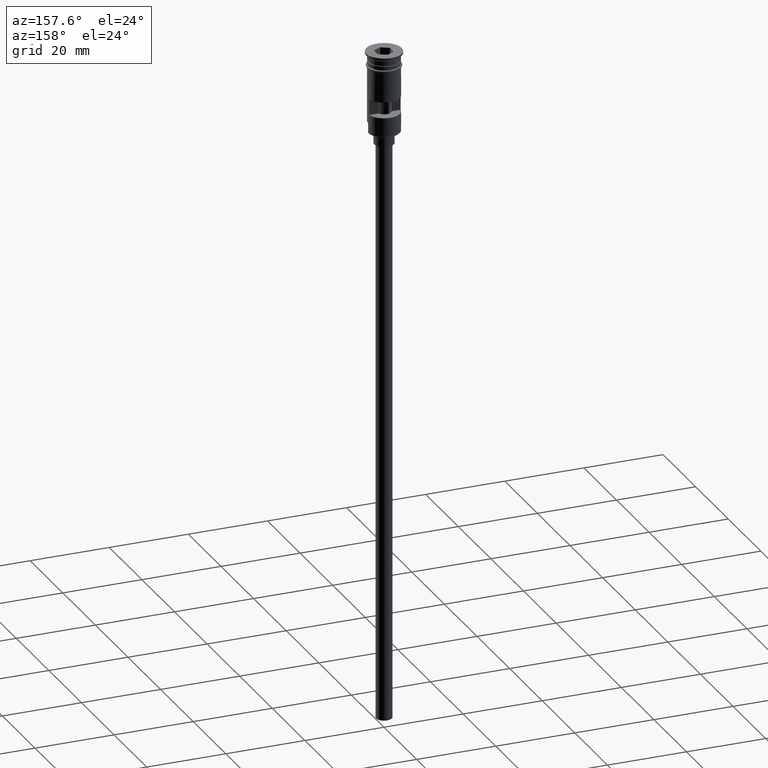
[diagram: clean part render]
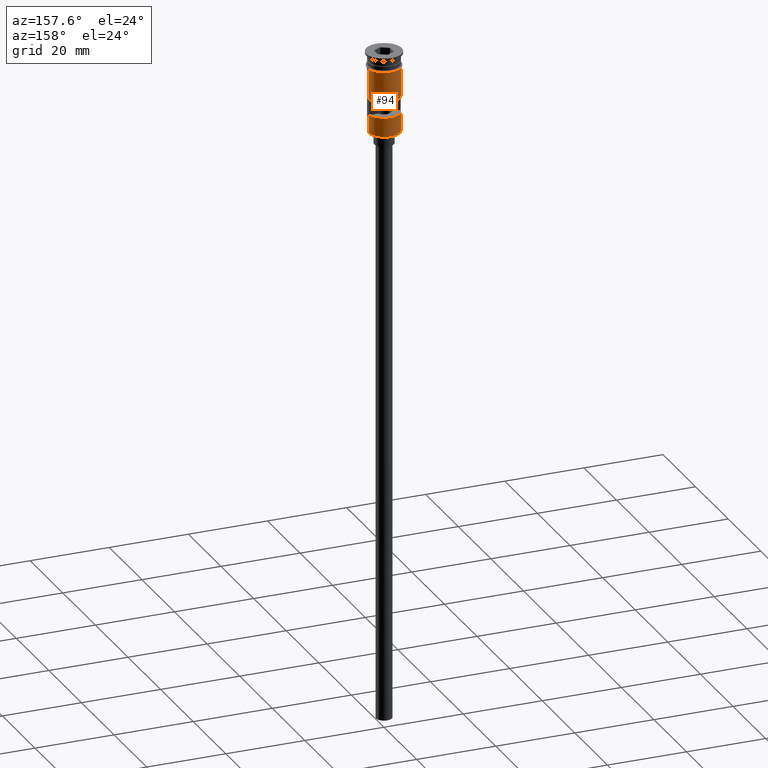
[diagram: same view with one face highlighted and labeled with its STEP entity id]
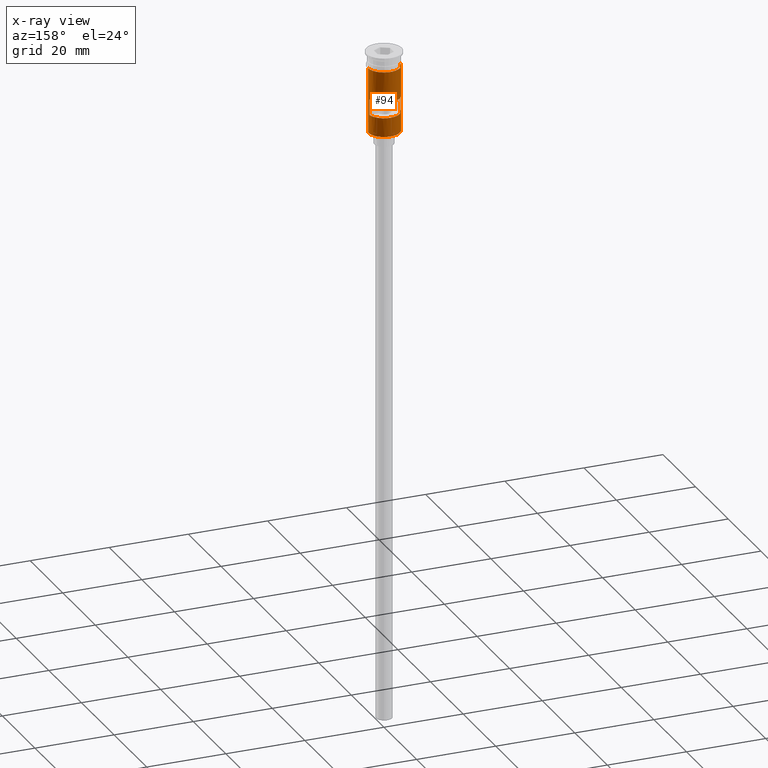
[diagram: x-ray of the same camera — body ghosted, the highlighted face saturated]
A machine part, auxiliary view. The second image highlights one B-rep face of the part: STEP entity #94.
The next image is the same camera in x-ray: the body ghosted, the highlighted face saturated — about 0% of this face is hidden behind the body in this view.
In plain terms, the highlighted cylindrical surface (edge-blend (fillet) strip) has radius 4 mm, axis along (-0, -0, 1).
Its self-contained STEP definition (entity closure, byte-faithful):
#8 = VECTOR ( 'NONE', #547, 1000.000000000000000 ) ;
#17 = CARTESIAN_POINT ( 'NONE',  ( -3.999999999999997335, 0.000000000000000000, -20.49999999999999645 ) ) ;
#19 = DIRECTION ( 'NONE',  ( 0.000000000000000000, 0.000000000000000000, 1.000000000000000000 ) ) ;
#35 = AXIS2_PLACEMENT_3D ( 'NONE', #473, #1473, #1346 ) ;
#45 = EDGE_CURVE ( 'NONE', #760, #1393, #1230, .T. ) ;
#48 = EDGE_CURVE ( 'NONE', #917, #514, #294, .T. ) ;
#53 = CARTESIAN_POINT ( 'NONE',  ( 0.000000000000000000, 0.000000000000000000, 0.000000000000000000 ) ) ;
#62 = AXIS2_PLACEMENT_3D ( 'NONE', #1250, #245, #166 ) ;
#65 = CARTESIAN_POINT ( 'NONE',  ( 4.000000000000000000, 0.000000000000000000, 0.000000000000000000 ) ) ;
#94 = ADVANCED_FACE ( 'NONE', ( #1017, #1041 ), #657, .T. ) ;
#105 = VECTOR ( 'NONE', #1394, 1000.000000000000000 ) ;
#119 = CARTESIAN_POINT ( 'NONE',  ( -4.000000000000000000, 4.898587196589412829E-16, 0.000000000000000000 ) ) ;
#126 = CARTESIAN_POINT ( 'NONE',  ( 0.000000000000000000, 0.000000000000000000, -11.50000000000000000 ) ) ;
#166 = DIRECTION ( 'NONE',  ( -1.000000000000000000, 0.000000000000000000, 0.000000000000000000 ) ) ;
#168 = ORIENTED_EDGE ( 'NONE', *, *, #453, .F. ) ;
#187 = EDGE_CURVE ( 'NONE', #307, #916, #247, .T. ) ;
#211 = CARTESIAN_POINT ( 'NONE',  ( 3.999999999999997335, 4.898587196589409870E-16, -20.29999999999997584 ) ) ;
#227 = AXIS2_PLACEMENT_3D ( 'NONE', #53, #1548, #427 ) ;
#245 = DIRECTION ( 'NONE',  ( 0.000000000000000000, 0.000000000000000000, 1.000000000000000000 ) ) ;
#247 = LINE ( 'NONE', #1492, #1139 ) ;
#265 = DIRECTION ( 'NONE',  ( -0.000000000000000000, -0.000000000000000000, 1.000000000000000000 ) ) ;
#269 = ORIENTED_EDGE ( 'NONE', *, *, #45, .T. ) ;
#294 = LINE ( 'NONE', #1402, #105 ) ;
#307 = VERTEX_POINT ( 'NONE', #211 ) ;
#348 = ORIENTED_EDGE ( 'NONE', *, *, #972, .F. ) ;
#357 = CIRCLE ( 'NONE', #62, 4.000000000000000000 ) ;
#372 = DIRECTION ( 'NONE',  ( -0.000000000000000000, -0.000000000000000000, 1.000000000000000000 ) ) ;
#386 = AXIS2_PLACEMENT_3D ( 'NONE', #126, #1388, #982 ) ;
#403 = ORIENTED_EDGE ( 'NONE', *, *, #187, .F. ) ;
#407 = CARTESIAN_POINT ( 'NONE',  ( 4.000000000000000000, 0.000000000000000000, -3.799999999999998490 ) ) ;
#419 = CIRCLE ( 'NONE', #1327, 4.000000000000000000 ) ;
#427 = DIRECTION ( 'NONE',  ( 1.000000000000000000, 0.000000000000000000, 0.000000000000000000 ) ) ;
#439 = DIRECTION ( 'NONE',  ( 0.000000000000000000, 0.000000000000000000, -1.000000000000000000 ) ) ;
#451 = ORIENTED_EDGE ( 'NONE', *, *, #1465, .F. ) ;
#453 = EDGE_CURVE ( 'NONE', #514, #902, #823, .T. ) ;
#473 = CARTESIAN_POINT ( 'NONE',  ( 0.000000000000000000, 0.000000000000000000, -3.799999999999998490 ) ) ;
#514 = VERTEX_POINT ( 'NONE', #755 ) ;
#515 = CARTESIAN_POINT ( 'NONE',  ( 3.954743986657038413, 0.5999999999999996447, -11.50000000000000000 ) ) ;
#536 = DIRECTION ( 'NONE',  ( -0.000000000000000000, -0.000000000000000000, 1.000000000000000000 ) ) ;
#547 = DIRECTION ( 'NONE',  ( -0.000000000000000000, -0.000000000000000000, 1.000000000000000000 ) ) ;
#627 = ORIENTED_EDGE ( 'NONE', *, *, #48, .F. ) ;
#639 = EDGE_CURVE ( 'NONE', #677, #1393, #1032, .T. ) ;
#640 = CARTESIAN_POINT ( 'NONE',  ( 0.000000000000000000, 0.000000000000000000, -15.50000000000000000 ) ) ;
#657 = CYLINDRICAL_SURFACE ( 'NONE', #227, 4.000000000000000000 ) ;
#677 = VERTEX_POINT ( 'NONE', #407 ) ;
#684 = EDGE_LOOP ( 'NONE', ( #1368, #168, #627, #451 ) ) ;
#755 = CARTESIAN_POINT ( 'NONE',  ( -3.954743986657037524, 0.5999999999999996447, -11.50000000000000000 ) ) ;
#760 = VERTEX_POINT ( 'NONE', #1506 ) ;
#823 = CIRCLE ( 'NONE', #386, 4.000000000000000000 ) ;
#841 = EDGE_CURVE ( 'NONE', #307, #890, #357, .T. ) ;
#879 = VECTOR ( 'NONE', #265, 1000.000000000000000 ) ;
#890 = VERTEX_POINT ( 'NONE', #1382 ) ;
#894 = CARTESIAN_POINT ( 'NONE',  ( 4.000000000000000000, 4.898587196589412829E-16, -17.79999999999998295 ) ) ;
#902 = VERTEX_POINT ( 'NONE', #515 ) ;
#914 = EDGE_CURVE ( 'NONE', #890, #760, #1122, .T. ) ;
#916 = VERTEX_POINT ( 'NONE', #894 ) ;
#917 = VERTEX_POINT ( 'NONE', #1369 ) ;
#919 = LINE ( 'NONE', #65, #8 ) ;
#972 = EDGE_CURVE ( 'NONE', #916, #677, #919, .T. ) ;
#982 = DIRECTION ( 'NONE',  ( 1.000000000000000000, 0.000000000000000000, 0.000000000000000000 ) ) ;
#1017 = FACE_BOUND ( 'NONE', #684, .T. ) ;
#1032 = CIRCLE ( 'NONE', #35, 4.000000000000000000 ) ;
#1041 = FACE_OUTER_BOUND ( 'NONE', #1547, .T. ) ;
#1122 = LINE ( 'NONE', #17, #879 ) ;
#1139 = VECTOR ( 'NONE', #372, 1000.000000000000000 ) ;
#1230 = LINE ( 'NONE', #119, #1425 ) ;
#1243 = CARTESIAN_POINT ( 'NONE',  ( 3.954743986657038413, 0.5999999999999996447, -15.50000000000000000 ) ) ;
#1250 = CARTESIAN_POINT ( 'NONE',  ( 0.000000000000000000, 0.000000000000000000, -20.29999999999997584 ) ) ;
#1251 = CARTESIAN_POINT ( 'NONE',  ( -4.000000000000000000, 4.898587196589412829E-16, -3.799999999999998490 ) ) ;
#1255 = ORIENTED_EDGE ( 'NONE', *, *, #639, .F. ) ;
#1299 = ORIENTED_EDGE ( 'NONE', *, *, #914, .T. ) ;
#1327 = AXIS2_PLACEMENT_3D ( 'NONE', #640, #19, #1511 ) ;
#1346 = DIRECTION ( 'NONE',  ( 1.000000000000000000, 0.000000000000000000, 0.000000000000000000 ) ) ;
#1368 = ORIENTED_EDGE ( 'NONE', *, *, #1581, .F. ) ;
#1369 = CARTESIAN_POINT ( 'NONE',  ( -3.954743986657037524, 0.5999999999999996447, -15.50000000000000000 ) ) ;
#1382 = CARTESIAN_POINT ( 'NONE',  ( -3.999999999999997335, 0.000000000000000000, -20.29999999999997584 ) ) ;
#1388 = DIRECTION ( 'NONE',  ( -0.000000000000000000, 0.000000000000000000, -1.000000000000000000 ) ) ;
#1393 = VERTEX_POINT ( 'NONE', #1251 ) ;
#1394 = DIRECTION ( 'NONE',  ( -0.000000000000000000, -0.000000000000000000, 1.000000000000000000 ) ) ;
#1402 = CARTESIAN_POINT ( 'NONE',  ( -3.954743986657037524, 0.5999999999999996447, 0.000000000000000000 ) ) ;
#1423 = VERTEX_POINT ( 'NONE', #1243 ) ;
#1425 = VECTOR ( 'NONE', #536, 1000.000000000000000 ) ;
#1465 = EDGE_CURVE ( 'NONE', #1423, #917, #419, .T. ) ;
#1473 = DIRECTION ( 'NONE',  ( -0.000000000000000000, -0.000000000000000000, 1.000000000000000000 ) ) ;
#1492 = CARTESIAN_POINT ( 'NONE',  ( 3.999999999999997335, 4.898587196589409870E-16, -20.49999999999999645 ) ) ;
#1496 = ORIENTED_EDGE ( 'NONE', *, *, #841, .T. ) ;
#1506 = CARTESIAN_POINT ( 'NONE',  ( -3.999999999999997335, 0.000000000000000000, -17.79999999999998295 ) ) ;
#1511 = DIRECTION ( 'NONE',  ( -1.000000000000000000, 0.000000000000000000, 0.000000000000000000 ) ) ;
#1537 = VECTOR ( 'NONE', #439, 1000.000000000000000 ) ;
#1545 = CARTESIAN_POINT ( 'NONE',  ( 3.954743986657037524, 0.5999999999999996447, 0.000000000000000000 ) ) ;
#1547 = EDGE_LOOP ( 'NONE', ( #1299, #269, #1255, #348, #403, #1496 ) ) ;
#1548 = DIRECTION ( 'NONE',  ( -0.000000000000000000, -0.000000000000000000, 1.000000000000000000 ) ) ;
#1561 = LINE ( 'NONE', #1545, #1537 ) ;
#1581 = EDGE_CURVE ( 'NONE', #902, #1423, #1561, .T. ) ;